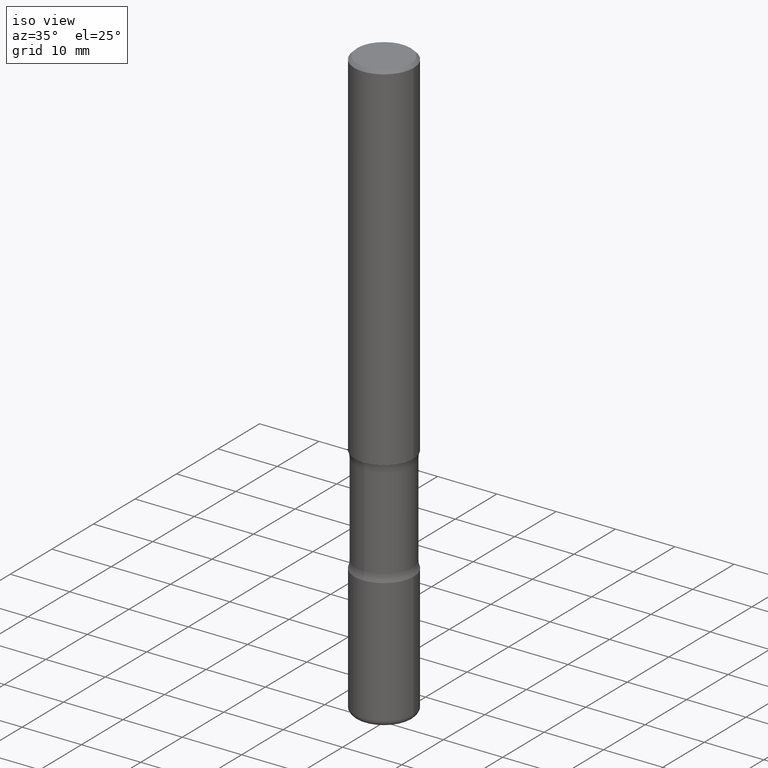
[diagram: clean part render]
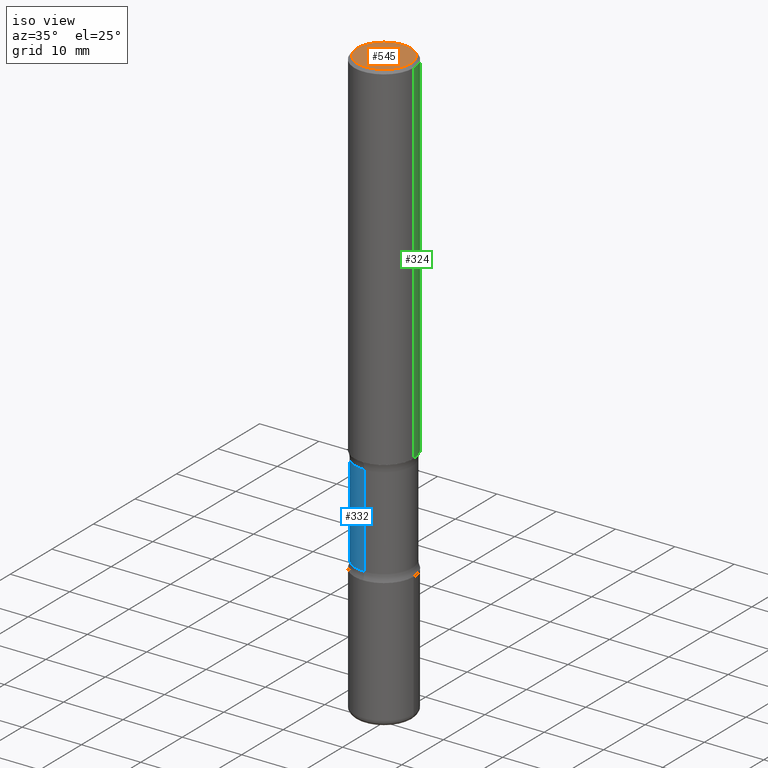
[diagram: same view with three faces highlighted in distinct colors, each labeled with its STEP entity id]
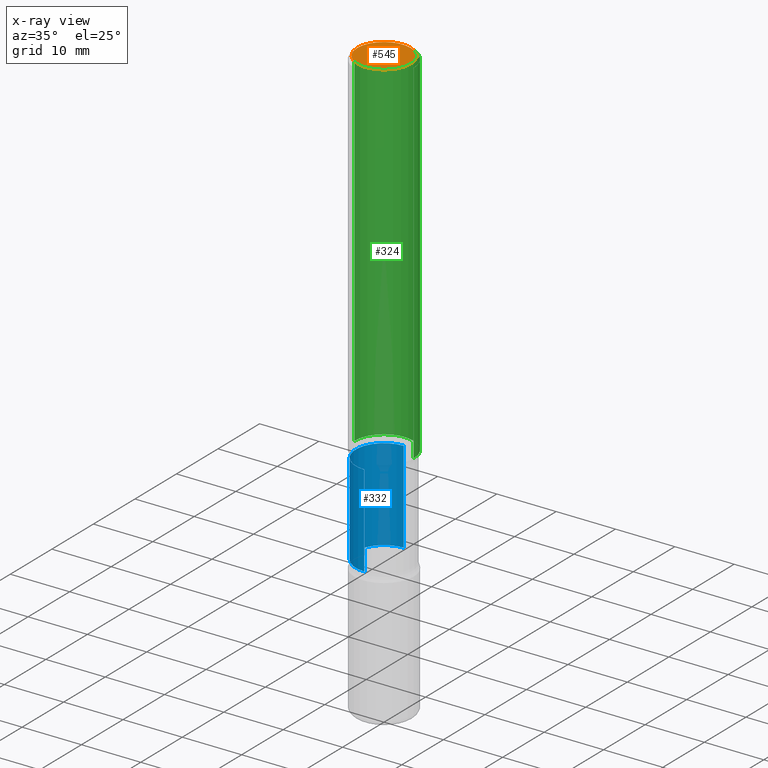
[diagram: x-ray of the same camera — body ghosted, the three highlighted faces saturated]
A machine part, iso view with three faces highlighted in distinct colors.
The next image is the same camera in x-ray (body ghosted, the three faces saturated) — at least one of them is partly hidden behind the body in this view.
Their STEP definitions:

[orange] entity #545 — the highlighted planar face has unit normal (0, -0, -1).
#12 = EDGE_CURVE ( 'NONE', #544, #266, #32, .T. ) ;
#20 = PLANE ( 'NONE',  #30 ) ;
#30 = AXIS2_PLACEMENT_3D ( 'NONE', #66, #488, #323 ) ;
#32 = CIRCLE ( 'NONE', #88, 0.1768499999999998962 ) ;
#44 = DIRECTION ( 'NONE',  ( -2.445468806185136597E-29, 3.491481338843145583E-15, 1.000000000000000000 ) ) ;
#58 = DIRECTION ( 'NONE',  ( -2.445468806185136597E-29, 3.491481338843145583E-15, 1.000000000000000000 ) ) ;
#66 = CARTESIAN_POINT ( 'NONE',  ( 1.234936949548815209E-15, 0.1768499999999998962, -6.153342185293597578E-16 ) ) ;
#88 = AXIS2_PLACEMENT_3D ( 'NONE', #224, #58, #469 ) ;
#101 = CIRCLE ( 'NONE', #409, 0.1768499999999998962 ) ;
#143 = DIRECTION ( 'NONE',  ( 1.000000000000000000, -6.982962677686266711E-15, 4.875932113059880811E-29 ) ) ;
#220 = CARTESIAN_POINT ( 'NONE',  ( -1.043851414335219820E-46, 1.490343170380447200E-32, 4.268512490100411279E-18 ) ) ;
#224 = CARTESIAN_POINT ( 'NONE',  ( -1.043851414335219820E-46, 1.490343170380447200E-32, 4.268512490100411279E-18 ) ) ;
#266 = VERTEX_POINT ( 'NONE', #542 ) ;
#323 = DIRECTION ( 'NONE',  ( -1.000000000000000000, 6.982962677686265922E-15, -4.876176775795935793E-29 ) ) ;
#361 = FACE_OUTER_BOUND ( 'NONE', #415, .T. ) ;
#365 = CARTESIAN_POINT ( 'NONE',  ( 0.1768499999999998962, -1.316798864272041549E-15, 4.268512490109333727E-18 ) ) ;
#409 = AXIS2_PLACEMENT_3D ( 'NONE', #220, #44, #143 ) ;
#415 = EDGE_LOOP ( 'NONE', ( #464, #551 ) ) ;
#454 = EDGE_CURVE ( 'NONE', #266, #544, #101, .T. ) ;
#464 = ORIENTED_EDGE ( 'NONE', *, *, #454, .T. ) ;
#469 = DIRECTION ( 'NONE',  ( 1.000000000000000000, -6.982962677686266711E-15, 4.875932113059880811E-29 ) ) ;
#488 = DIRECTION ( 'NONE',  ( 2.438088387897960049E-29, -3.491481338843145188E-15, -1.000000000000000000 ) ) ;
#542 = CARTESIAN_POINT ( 'NONE',  ( -0.1768499999999998962, 1.269851762937246858E-15, 4.268512490091652920E-18 ) ) ;
#544 = VERTEX_POINT ( 'NONE', #365 ) ;
#545 = ADVANCED_FACE ( 'NONE', ( #361 ), #20, .F. ) ;
#551 = ORIENTED_EDGE ( 'NONE', *, *, #12, .T. ) ;

[blue] entity #332 — the highlighted cylindrical surface (edge-blend (fillet) strip) has radius 4.7498 mm, axis along (0, -0, -1).
#16 = AXIS2_PLACEMENT_3D ( 'NONE', #559, #272, #136 ) ;
#35 = CYLINDRICAL_SURFACE ( 'NONE', #259, 0.1870000000000000828 ) ;
#47 = LINE ( 'NONE', #50, #271 ) ;
#50 = CARTESIAN_POINT ( 'NONE',  ( -1.282913125583179628E-15, -0.1870000000000137108, -3.936999999999999389 ) ) ;
#128 = CARTESIAN_POINT ( 'NONE',  ( 1.305814020727405957E-15, 0.1869999999999895079, -3.022263825191530806 ) ) ;
#136 = DIRECTION ( 'NONE',  ( 6.982962677686266711E-15, 1.000000000000000000, -2.921762560068729017E-15 ) ) ;
#179 = CARTESIAN_POINT ( 'NONE',  ( -1.316701078222244837E-15, -0.1870000000000086315, -2.410836174808469679 ) ) ;
#186 = VERTEX_POINT ( 'NONE', #320 ) ;
#199 = CIRCLE ( 'NONE', #205, 0.1870000000000000551 ) ;
#201 = EDGE_CURVE ( 'NONE', #186, #424, #341, .T. ) ;
#205 = AXIS2_PLACEMENT_3D ( 'NONE', #374, #329, #289 ) ;
#207 = CARTESIAN_POINT ( 'NONE',  ( 9.710227154047748282E-29, -1.362793696358492956E-14, -3.937000000000000277 ) ) ;
#212 = VECTOR ( 'NONE', #541, 39.37007874015748143 ) ;
#236 = EDGE_CURVE ( 'NONE', #549, #424, #199, .T. ) ;
#252 = EDGE_LOOP ( 'NONE', ( #510, #560, #557, #382 ) ) ;
#254 = FACE_OUTER_BOUND ( 'NONE', #252, .T. ) ;
#259 = AXIS2_PLACEMENT_3D ( 'NONE', #207, #422, #380 ) ;
#271 = VECTOR ( 'NONE', #509, 39.37007874015748143 ) ;
#272 = DIRECTION ( 'NONE',  ( 2.540626945080028130E-29, -3.355209467880746123E-15, -1.000000000000000000 ) ) ;
#289 = DIRECTION ( 'NONE',  ( 6.982962677686266711E-15, 1.000000000000000000, -2.921762560068729806E-15 ) ) ;
#320 = CARTESIAN_POINT ( 'NONE',  ( 1.305814020727390771E-15, 0.1869999999999916174, -2.410836174808470567 ) ) ;
#326 = CARTESIAN_POINT ( 'NONE',  ( -1.316701078222226890E-15, -0.1870000000000106022, -3.022263825191529918 ) ) ;
#329 = DIRECTION ( 'NONE',  ( 2.540626945080028130E-29, -3.355209467880746123E-15, -1.000000000000000000 ) ) ;
#332 = ADVANCED_FACE ( 'NONE', ( #254 ), #35, .T. ) ;
#341 = LINE ( 'NONE', #413, #212 ) ;
#353 = CIRCLE ( 'NONE', #16, 0.1870000000000001106 ) ;
#359 = EDGE_CURVE ( 'NONE', #393, #549, #47, .T. ) ;
#374 = CARTESIAN_POINT ( 'NONE',  ( 7.386223780689915972E-29, -1.055880548925453445E-14, -3.022263825191530362 ) ) ;
#380 = DIRECTION ( 'NONE',  ( 6.982962677686266711E-15, 1.000000000000000000, -2.921762560068729411E-15 ) ) ;
#382 = ORIENTED_EDGE ( 'NONE', *, *, #236, .F. ) ;
#393 = VERTEX_POINT ( 'NONE', #179 ) ;
#413 = CARTESIAN_POINT ( 'NONE',  ( 1.305814020727429425E-15, 0.1869999999999864548, -3.937000000000000721 ) ) ;
#422 = DIRECTION ( 'NONE',  ( 2.540626945080028130E-29, -3.355209467880746123E-15, -1.000000000000000000 ) ) ;
#424 = VERTEX_POINT ( 'NONE', #128 ) ;
#449 = EDGE_CURVE ( 'NONE', #393, #186, #353, .T. ) ;
#509 = DIRECTION ( 'NONE',  ( 2.540626945080028130E-29, -3.355209467880745729E-15, -1.000000000000000000 ) ) ;
#510 = ORIENTED_EDGE ( 'NONE', *, *, #359, .F. ) ;
#541 = DIRECTION ( 'NONE',  ( 2.540626945080028130E-29, -3.355209467880745729E-15, -1.000000000000000000 ) ) ;
#549 = VERTEX_POINT ( 'NONE', #326 ) ;
#557 = ORIENTED_EDGE ( 'NONE', *, *, #201, .T. ) ;
#559 = CARTESIAN_POINT ( 'NONE',  ( 5.832814217159742143E-29, -8.507337647765213396E-15, -2.410836174808470123 ) ) ;
#560 = ORIENTED_EDGE ( 'NONE', *, *, #449, .T. ) ;

[green] entity #324 — the highlighted cylindrical surface (edge-blend (fillet) strip) has radius 5 mm, axis along (-0, 0, 1).
#11 = LINE ( 'NONE', #540, #400 ) ;
#39 = ORIENTED_EDGE ( 'NONE', *, *, #165, .T. ) ;
#48 = ORIENTED_EDGE ( 'NONE', *, *, #508, .F. ) ;
#49 = EDGE_CURVE ( 'NONE', #466, #129, #11, .T. ) ;
#69 = DIRECTION ( 'NONE',  ( -2.445468806185136597E-29, 3.491481338843145583E-15, 1.000000000000000000 ) ) ;
#92 = ORIENTED_EDGE ( 'NONE', *, *, #539, .F. ) ;
#98 = DIRECTION ( 'NONE',  ( -2.445468806185136597E-29, 3.491481338843145583E-15, 1.000000000000000000 ) ) ;
#107 = DIRECTION ( 'NONE',  ( -2.445468806185136877E-29, 3.491481338843145188E-15, 1.000000000000000000 ) ) ;
#110 = AXIS2_PLACEMENT_3D ( 'NONE', #257, #98, #438 ) ;
#129 = VERTEX_POINT ( 'NONE', #278 ) ;
#165 = EDGE_CURVE ( 'NONE', #421, #466, #170, .T. ) ;
#170 = CIRCLE ( 'NONE', #240, 0.1968500000000001082 ) ;
#171 = ORIENTED_EDGE ( 'NONE', *, *, #49, .T. ) ;
#182 = AXIS2_PLACEMENT_3D ( 'NONE', #294, #461, #417 ) ;
#202 = CARTESIAN_POINT ( 'NONE',  ( 0.1968499999999999417, -1.420318657638188727E-15, -0.02000000000000006981 ) ) ;
#209 = FACE_OUTER_BOUND ( 'NONE', #308, .T. ) ;
#232 = CIRCLE ( 'NONE', #110, 0.1968499999999999417 ) ;
#237 = DIRECTION ( 'NONE',  ( 1.000000000000000000, -6.982962677686265133E-15, 0.000000000000000000 ) ) ;
#240 = AXIS2_PLACEMENT_3D ( 'NONE', #408, #69, #237 ) ;
#249 = CYLINDRICAL_SURFACE ( 'NONE', #182, 0.1968500000000000527 ) ;
#257 = CARTESIAN_POINT ( 'NONE',  ( 4.890937612370289799E-31, -6.982962677686315028E-17, -0.02000000000000006981 ) ) ;
#278 = CARTESIAN_POINT ( 'NONE',  ( -0.1968499999999999417, 1.304766576325678113E-15, -0.02000000000000006981 ) ) ;
#294 = CARTESIAN_POINT ( 'NONE',  ( 0.000000000000000000, 0.000000000000000000, 0.000000000000000000 ) ) ;
#308 = EDGE_LOOP ( 'NONE', ( #39, #171, #48, #92 ) ) ;
#316 = VERTEX_POINT ( 'NONE', #202 ) ;
#324 = ADVANCED_FACE ( 'NONE', ( #209 ), #249, .T. ) ;
#343 = LINE ( 'NONE', #452, #543 ) ;
#363 = DIRECTION ( 'NONE',  ( -2.445468806185136877E-29, 3.491481338843145188E-15, 1.000000000000000000 ) ) ;
#400 = VECTOR ( 'NONE', #363, 39.37007874015748143 ) ;
#408 = CARTESIAN_POINT ( 'NONE',  ( 5.776686413970529753E-29, -8.247577218615279626E-15, -2.362200000000000077 ) ) ;
#417 = DIRECTION ( 'NONE',  ( 1.000000000000000000, -6.982962677686266711E-15, 4.876176775795935793E-29 ) ) ;
#421 = VERTEX_POINT ( 'NONE', #475 ) ;
#431 = CARTESIAN_POINT ( 'NONE',  ( -0.1968500000000001360, -2.760000047352310125E-15, -2.362200000000000077 ) ) ;
#438 = DIRECTION ( 'NONE',  ( 1.000000000000000000, -6.982962677686266711E-15, 0.000000000000000000 ) ) ;
#452 = CARTESIAN_POINT ( 'NONE',  ( 0.1968500000000000527, -1.374596203102542003E-15, 9.598753983154302260E-30 ) ) ;
#461 = DIRECTION ( 'NONE',  ( -2.445468806185136597E-29, 3.491481338843145583E-15, 1.000000000000000000 ) ) ;
#466 = VERTEX_POINT ( 'NONE', #431 ) ;
#475 = CARTESIAN_POINT ( 'NONE',  ( 0.1968500000000001082, -9.622173421717821235E-15, -2.362200000000000077 ) ) ;
#508 = EDGE_CURVE ( 'NONE', #316, #129, #232, .T. ) ;
#539 = EDGE_CURVE ( 'NONE', #421, #316, #343, .T. ) ;
#540 = CARTESIAN_POINT ( 'NONE',  ( -0.1968500000000000527, 1.398703375343757590E-15, -9.682923725166785079E-30 ) ) ;
#543 = VECTOR ( 'NONE', #107, 39.37007874015748143 ) ;